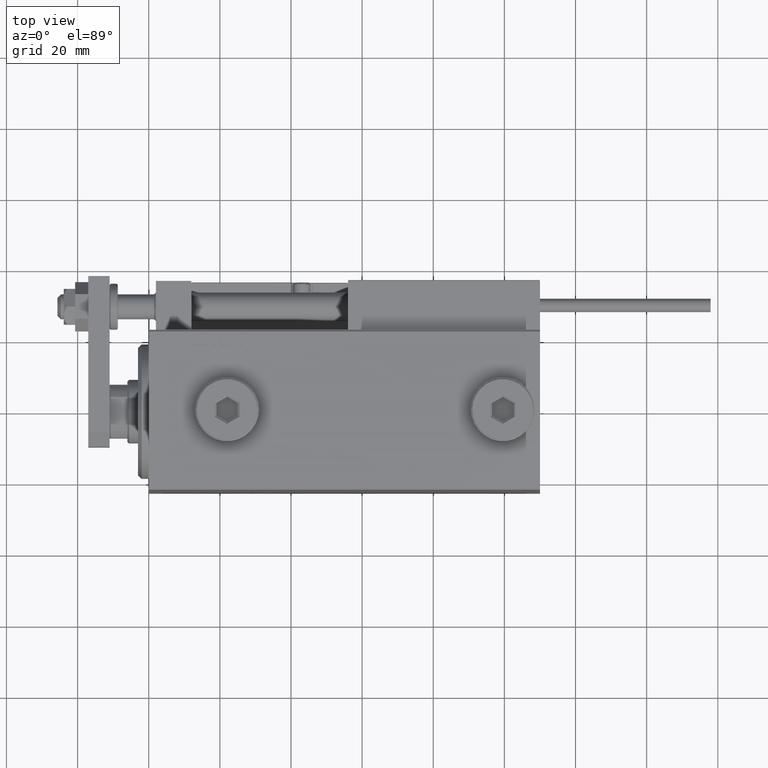
[diagram: clean part render]
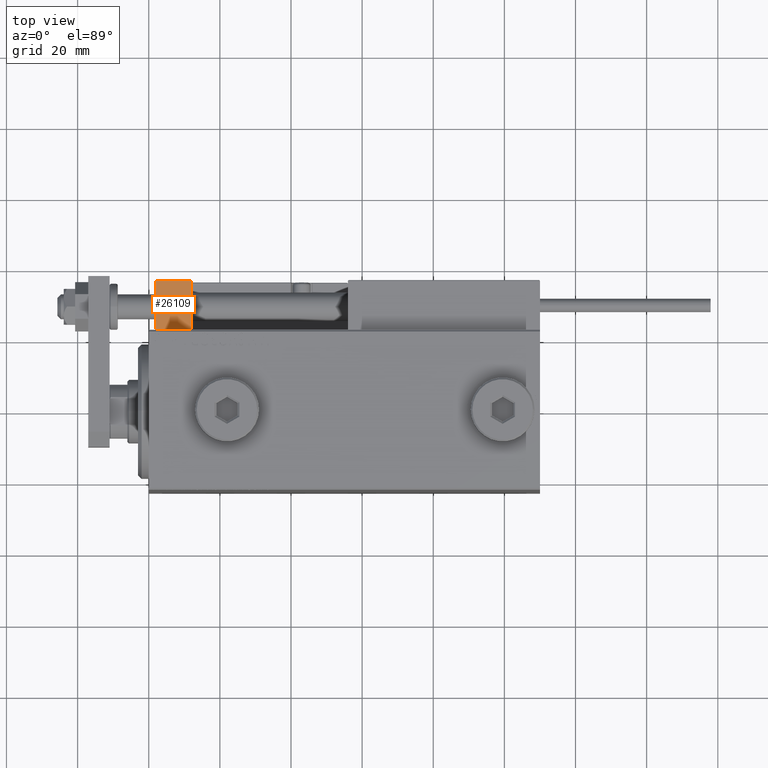
[diagram: same view with one face highlighted and labeled with its STEP entity id]
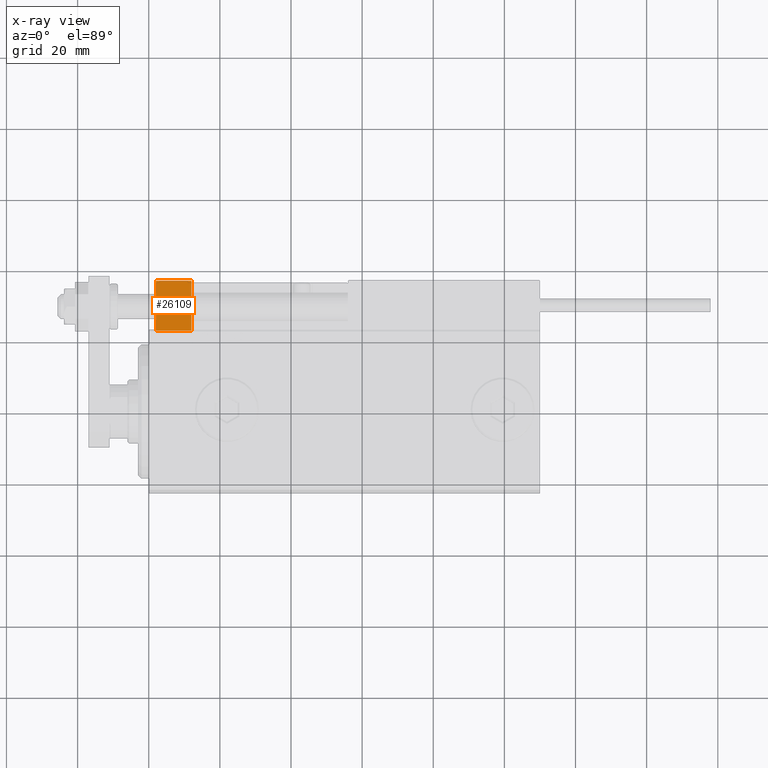
[diagram: x-ray of the same camera — body ghosted, the highlighted face saturated]
A machine part, top view. The second image highlights one B-rep face of the part: STEP entity #26109.
The next image is the same camera in x-ray: the body ghosted, the highlighted face saturated — about 0% of this face is hidden behind the body in this view.
In plain terms, the highlighted planar face has unit normal (-0, -0, 1).
Its self-contained STEP definition (entity closure, byte-faithful):
#1341 = CARTESIAN_POINT ( 'NONE',  ( 0.000000000000000000, -7.000000000000000000, -16.00000000000000711 ) ) ;
#3717 = CARTESIAN_POINT ( 'NONE',  ( 10.00000000000000000, 7.000000000000000000, -16.00000000000000711 ) ) ;
#3722 = CARTESIAN_POINT ( 'NONE',  ( 10.00000000000000000, 7.000000000000000000, -16.00000000000000711 ) ) ;
#5058 = CARTESIAN_POINT ( 'NONE',  ( 10.00000000000000000, -7.000000000000000000, -16.00000000000000711 ) ) ;
#5111 = DIRECTION ( 'NONE',  ( 0.000000000000000000, 0.000000000000000000, -1.000000000000000000 ) ) ;
#6298 = EDGE_CURVE ( 'NONE', #18025, #47807, #20751, .T. ) ;
#6432 = EDGE_LOOP ( 'NONE', ( #7095, #27094, #11388, #6438 ) ) ;
#6438 = ORIENTED_EDGE ( 'NONE', *, *, #19579, .T. ) ;
#7071 = DIRECTION ( 'NONE',  ( 0.000000000000000000, -1.000000000000000000, 0.000000000000000000 ) ) ;
#7095 = ORIENTED_EDGE ( 'NONE', *, *, #39315, .F. ) ;
#7817 = AXIS2_PLACEMENT_3D ( 'NONE', #33313, #5111, #25577 ) ;
#10648 = DIRECTION ( 'NONE',  ( 0.000000000000000000, -1.000000000000000000, 0.000000000000000000 ) ) ;
#11388 = ORIENTED_EDGE ( 'NONE', *, *, #39757, .T. ) ;
#11958 = DIRECTION ( 'NONE',  ( -1.000000000000000000, -0.000000000000000000, -0.000000000000000000 ) ) ;
#14008 = VERTEX_POINT ( 'NONE', #1341 ) ;
#15165 = LINE ( 'NONE', #3717, #49318 ) ;
#18025 = VERTEX_POINT ( 'NONE', #28680 ) ;
#19579 = EDGE_CURVE ( 'NONE', #23203, #14008, #51903, .T. ) ;
#20751 = LINE ( 'NONE', #3722, #34219 ) ;
#23203 = VERTEX_POINT ( 'NONE', #5058 ) ;
#25577 = DIRECTION ( 'NONE',  ( -1.000000000000000000, 0.000000000000000000, -0.000000000000000000 ) ) ;
#26109 = ADVANCED_FACE ( 'NONE', ( #41527 ), #37028, .T. ) ;
#26198 = CARTESIAN_POINT ( 'NONE',  ( 0.000000000000000000, 7.000000000000000000, -16.00000000000000711 ) ) ;
#27094 = ORIENTED_EDGE ( 'NONE', *, *, #6298, .F. ) ;
#28680 = CARTESIAN_POINT ( 'NONE',  ( 10.00000000000000000, 7.000000000000000000, -16.00000000000000711 ) ) ;
#33313 = CARTESIAN_POINT ( 'NONE',  ( 10.00000000000000000, 7.000000000000000000, -16.00000000000000711 ) ) ;
#34219 = VECTOR ( 'NONE', #11958, 1000.000000000000000 ) ;
#34783 = CARTESIAN_POINT ( 'NONE',  ( 0.000000000000000000, 7.000000000000000000, -16.00000000000000711 ) ) ;
#37028 = PLANE ( 'NONE',  #7817 ) ;
#39315 = EDGE_CURVE ( 'NONE', #47807, #14008, #46138, .T. ) ;
#39757 = EDGE_CURVE ( 'NONE', #18025, #23203, #15165, .T. ) ;
#39917 = VECTOR ( 'NONE', #7071, 1000.000000000000000 ) ;
#39939 = CARTESIAN_POINT ( 'NONE',  ( 10.00000000000000000, -7.000000000000000000, -16.00000000000000711 ) ) ;
#41527 = FACE_OUTER_BOUND ( 'NONE', #6432, .T. ) ;
#43202 = VECTOR ( 'NONE', #43921, 1000.000000000000000 ) ;
#43921 = DIRECTION ( 'NONE',  ( -1.000000000000000000, -0.000000000000000000, -0.000000000000000000 ) ) ;
#46138 = LINE ( 'NONE', #26198, #39917 ) ;
#47807 = VERTEX_POINT ( 'NONE', #34783 ) ;
#49318 = VECTOR ( 'NONE', #10648, 1000.000000000000000 ) ;
#51903 = LINE ( 'NONE', #39939, #43202 ) ;